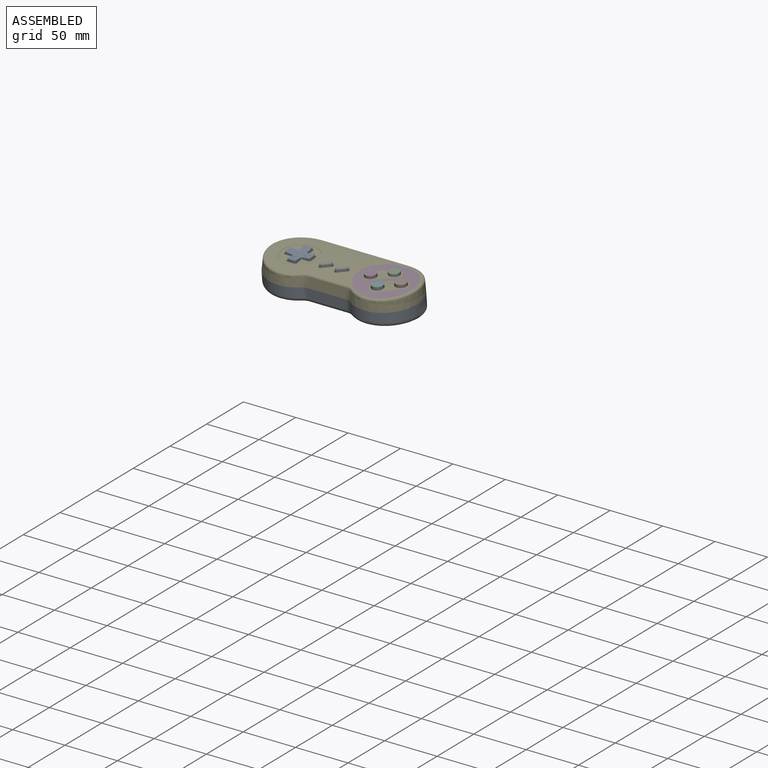
[diagram: assembled view]
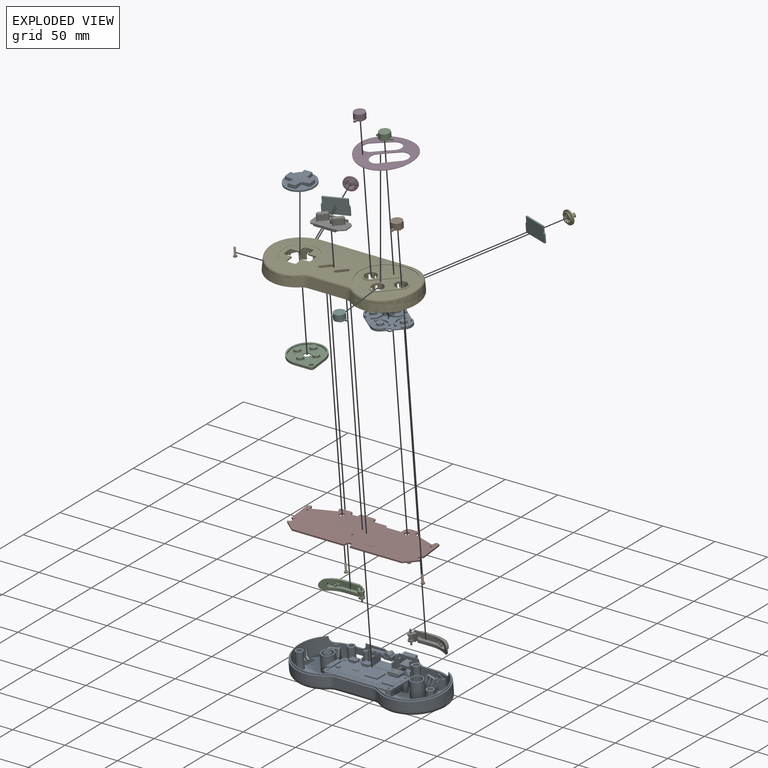
[diagram: exploded view]
GUIDED TOUR — MATED ASSEMBLY WITH SUBASSEMBLIES (Onshape document d4e5170b967958ae4bec7558, AutoMate assembly d4e5170b967958ae4bec7558_bfb75bdfd02195d627e89820_836d522591a3308e4b1309a6_default)

This assembly has 30 component occurrences arranged in 22 top-level units: 21 individual components plus 1 subassembly (S0). The tour has two levels: first the top level, where each subassembly is treated as one rigid unit; then each subassembly is toured internally in its own section (nesting deeper than one subassembly level is flattened into its subassembly's section).

Components are labeled P0..P29 across the whole record; subassembly units are labeled S0..S0. A mate is a constraint between two units; its type names the relative motion it leaves free:
  CYLINDRICAL — leaves both rotation about and translation along the listed axis free,
  FASTENED — locks the two components together rigidly (no relative motion),
  PARALLEL — keeps the two listed directions parallel,
  PLANAR — leaves sliding in the plane through the listed point (normal = the listed direction) and rotation about that normal free,
  SLIDER — leaves translation along the listed axis free.
Axis/direction vectors are unit vectors and 'through' points are millimeter coordinates, both in the assembly's world frame.

TOP-LEVEL MATES (between units; each subassembly's internal mates are listed in its own section)
  1. CYLINDRICAL "Cylindrical 7": P17 <-> P21, axis (0.000, 0.104, -0.995) through (1.51, -26.96, 27.78) mm
  2. CYLINDRICAL "Cylindrical 6": P24 <-> P17, axis (0.000, -0.104, 0.995) through (-101.99, -19.09, 29.61) mm
  3. CYLINDRICAL "Cylindrical 4": P13 <-> P17, axis (0.000, -0.104, 0.995) through (-101.99, -19.51, 33.59) mm
  4. FASTENED "Fastened 2": P12 <-> S0, direction (0.000, -0.104, 0.995) through (1.51, -26.23, 21.82) mm
  5. SLIDER "Slider 3": P10 <-> P17, axis (0.000, 0.104, -0.995) through (-77.17, -25.52, 33.18) mm
  6. PARALLEL "Parallel 2": P7 <-> P17, direction (0.000, 0.993, 0.122) through (-13.67, -29.84, 31.13) mm
  7. CYLINDRICAL "Cylindrical 10": P20 <-> P17, axis (0.000, 0.104, -0.995) through (-38.49, 6.01, 29.73) mm
  8. SLIDER "Slider 1": P23 <-> P17, axis (0.000, 0.104, -0.995) through (-5.49, -19.67, 34.91) mm
  9. PLANAR "Planar 2": P29 <-> P21, direction (0.309, -0.946, -0.099) through (-118.75, -5.45, 28.52) mm
  10. FASTENED "Fastened 3": P1 <-> S0, direction (0.000, -0.104, 0.995) through (-29.99, -0.37, 24.53) mm
  11. CYLINDRICAL "Cylindrical 2": P2 <-> P17, axis (0.000, 0.104, -0.995) through (-19.99, -8.21, 35.94) mm
  12. PLANAR "Planar 1": P19 <-> P21, direction (-0.309, -0.946, -0.099) through (-24.15, 1.31, 29.23) mm
  13. CYLINDRICAL "Cylindrical 9": P25 <-> P17, axis (0.309, -0.947, -0.090) through (-109.97, 4.37, 25.54) mm
  14. SLIDER "Slider 2": P16 <-> P17, axis (0.621, -0.779, -0.082) through (-31.58, -8.48, 35.96) mm
  15. PARALLEL "Parallel 1": P23 <-> P17, direction (-1.000, -0.002, 0.017) through (-6.48, -13.12, 33.09) mm
  16. CYLINDRICAL "Cylindrical 1": P7 <-> P17, axis (0.000, 0.104, -0.995) through (-19.99, -31.08, 33.51) mm
  17. FASTENED "Fastened 4": P26 <-> S0, direction (0.000, -0.104, 0.995) through (-91.99, -0.37, 24.53) mm
  18. CYLINDRICAL "Cylindrical 3": P4 <-> P17, axis (0.000, 0.104, -0.995) through (-34.49, -19.66, 34.82) mm
  19. CYLINDRICAL "Cylindrical 5": P22 <-> P17, axis (0.000, -0.104, 0.995) through (-5.49, -19.11, 29.61) mm
  20. PARALLEL "Parallel 4": P4 <-> P17, direction (-1.000, -0.002, 0.017) through (-35.48, -25.69, 31.76) mm
  21. FASTENED "Fastened 5": P14 <-> S0, direction (0.000, -0.104, 0.995) through (-123.49, -26.23, 21.82) mm
  22. FASTENED "Fastened 1": S0 <-> P17, direction (0.000, -0.104, 0.995) through (-79.07, -42.13, 21.16) mm
  23. CYLINDRICAL "Cylindrical 8": P6 <-> P17, axis (-0.309, -0.947, -0.090) through (-12.01, 4.37, 25.54) mm
  24. CYLINDRICAL "Cylindrical 11": P15 <-> P17, axis (0.000, -0.104, 0.995) through (-83.49, 6.01, 29.73) mm
  25. PARALLEL "Parallel 3": P2 <-> P17, direction (0.000, -0.996, -0.087) through (-26.31, -8.95, 33.43) mm

TOP-LEVEL ASSEMBLY ORDER
  1. P17 — the base component [order heuristic]
  2. P10 — core [order heuristic]
  3. P6 — core [order heuristic]
  4. P21 — core [order heuristic]
  5. P15 — core [order heuristic]
  6. P20 — core [order heuristic]
  7. P23 — core [order heuristic]
  8. P22 — core [order heuristic]
  9. P4 [order verified]
  10. P24 — core [order heuristic]
  11. P25 — core [order heuristic]
  12. P1 — core [order heuristic]
  13. P12 — core [order heuristic]
  14. P26 — core [order heuristic]
  15. P29 — core [order heuristic]
  16. P14 [order verified]
  17. P13 [order verified]
  18. P7 [order verified]
  19. P2 [order verified]
  20. P19 [order verified]
  21. P16 [order verified]
  22. S0 — core [order heuristic]
(P2, P7, P13, P14 verified with a relaxed clearance tolerance: the source model stores slight part interference there.)
Order-tag legend:
  [order verified] — this step's position reverses a verified removal order: the component was checked to insert without passing through the ones already placed.
  [order heuristic] — the first 15 components form the assembly's core: parts whose collision-free extraction could not be verified, listed in mate-graph order.

Of the 30 component occurrences, 2 carry the full construction recipe — the FeatureScript program that regenerates the part's solid from scratch; the rest are supplied as boundary geometry only. Each toured unit is shown spotlighted twice — assembled, then exploded with a leader line back to its socket (green = recipe-attached component, orange = geometry-only, blue = subassembly unit; the rest desaturated gray).
NOTE — this tour is split across 3 documents so each fits a 32k-token context. This is document 1: the component sections continue in the remaining 2 documents, each repeating the header above.
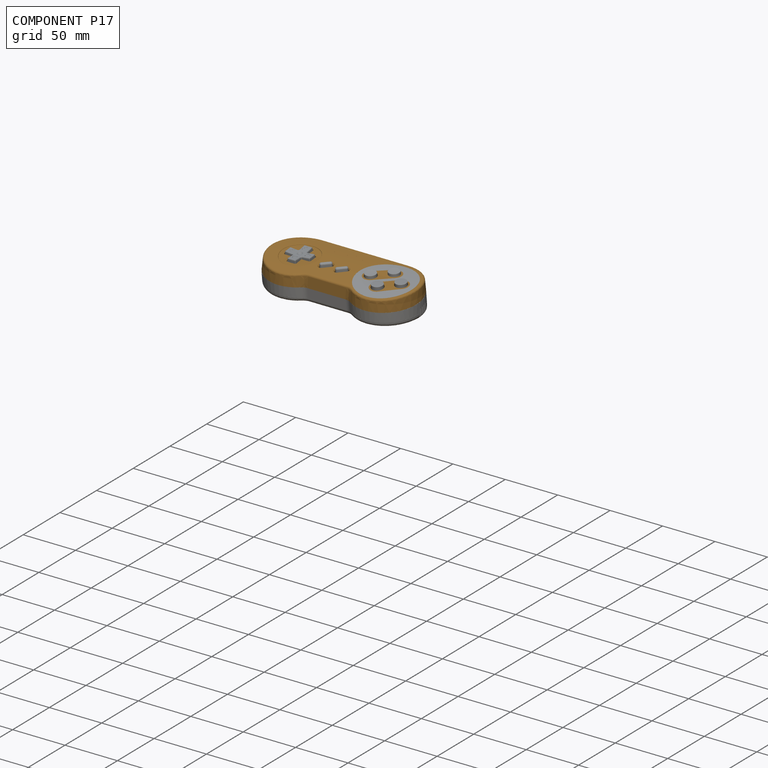
[diagram: component P17 — assembled]
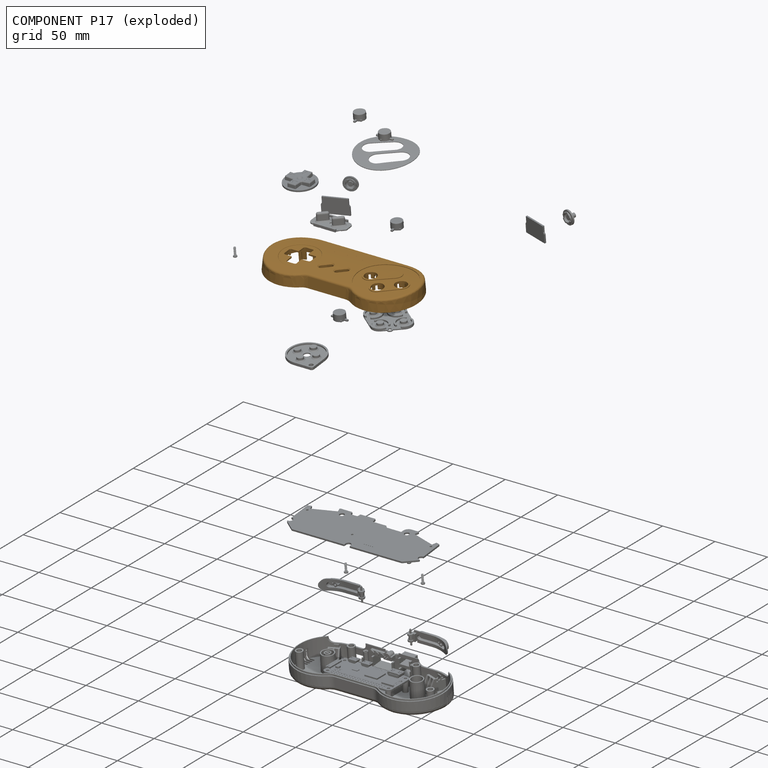
[diagram: component P17 — exploded]
COMPONENT P17 — geometry summary (no construction recipe available for this part):
  bounding box: 144.9 x 72.9 x 20.8 mm
  B-rep topology: 1 solid, 1193 faces, 6526 edges
  volume: 19819 mm^3 (9% of its bounding box)
Held by: CYLINDRICAL mate "Cylindrical 7" to P21; CYLINDRICAL mate "Cylindrical 6" to P24; CYLINDRICAL mate "Cylindrical 4" to P13; SLIDER mate "Slider 3" to P10; PARALLEL mate "Parallel 2" to P7; CYLINDRICAL mate "Cylindrical 10" to P20; SLIDER mate "Slider 1" to P23; CYLINDRICAL mate "Cylindrical 2" to P2; CYLINDRICAL mate "Cylindrical 9" to P25; SLIDER mate "Slider 2" to P16; PARALLEL mate "Parallel 1" to P23; CYLINDRICAL mate "Cylindrical 1" to P7; CYLINDRICAL mate "Cylindrical 3" to P4; CYLINDRICAL mate "Cylindrical 5" to P22; PARALLEL mate "Parallel 4" to P4; FASTENED mate "Fastened 1" to P0; CYLINDRICAL mate "Cylindrical 8" to P6; CYLINDRICAL mate "Cylindrical 11" to P15; PARALLEL mate "Parallel 3" to P2.
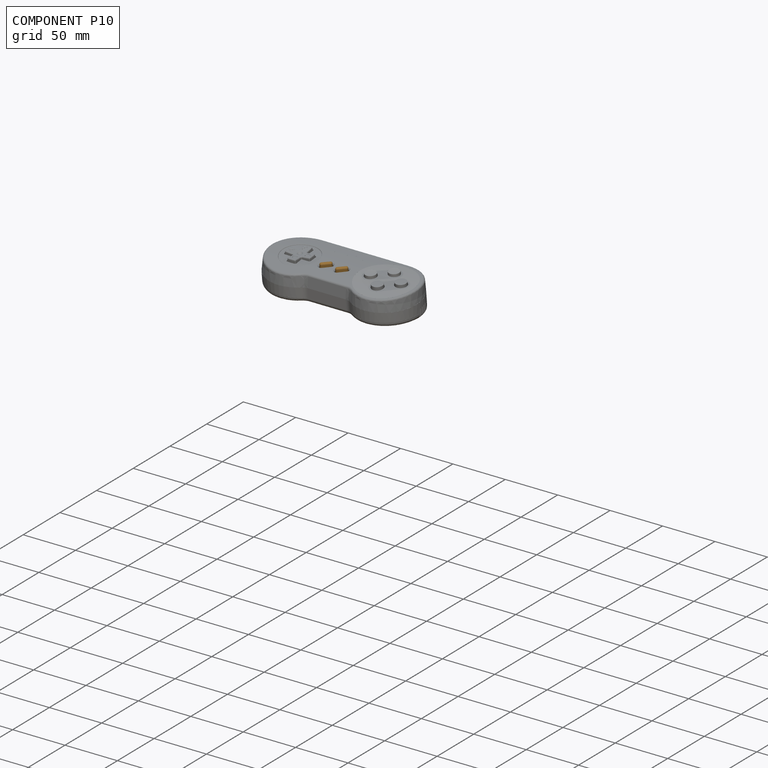
[diagram: component P10 — assembled]
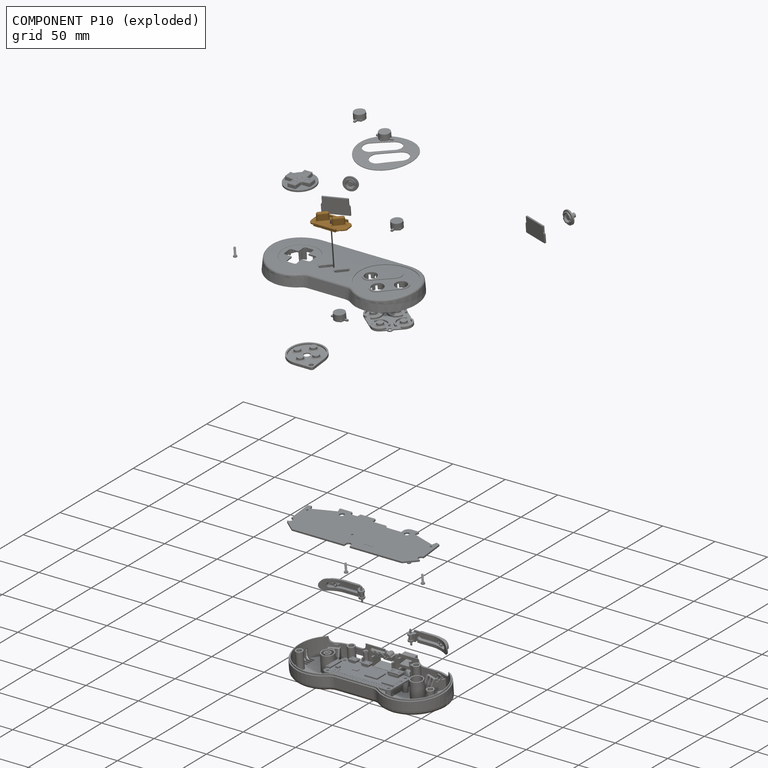
[diagram: component P10 — exploded]
COMPONENT P10 — geometry summary (no construction recipe available for this part):
  bounding box: 33.0 x 18.0 x 9.0 mm
  B-rep topology: 1 solid, 91 faces, 454 edges
  volume: 993 mm^3 (19% of its bounding box)
  symmetry: 2-fold rotationally symmetric about the z axis
Held by: SLIDER mate "Slider 3" to P17.
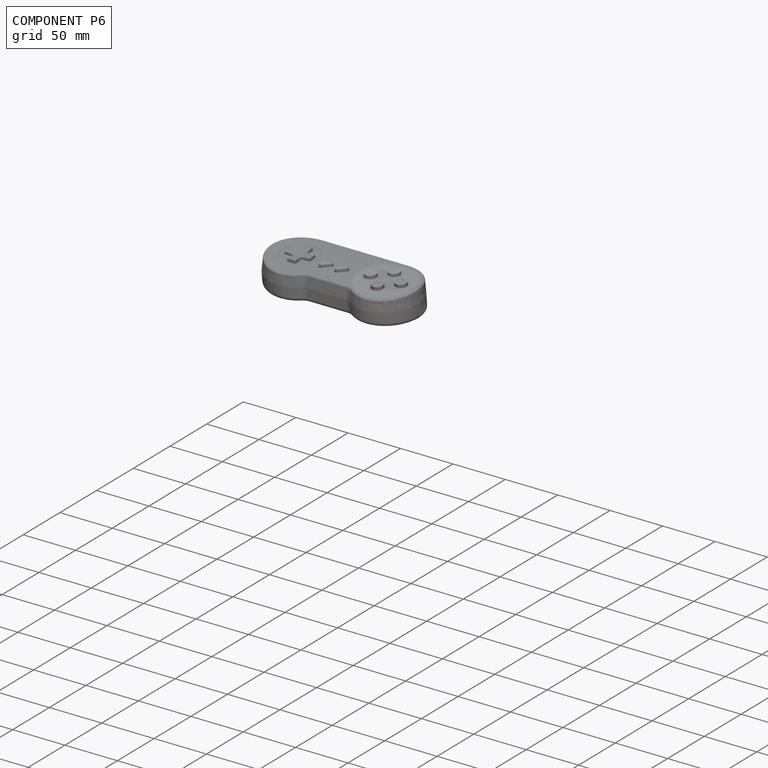
[diagram: component P6 — assembled]
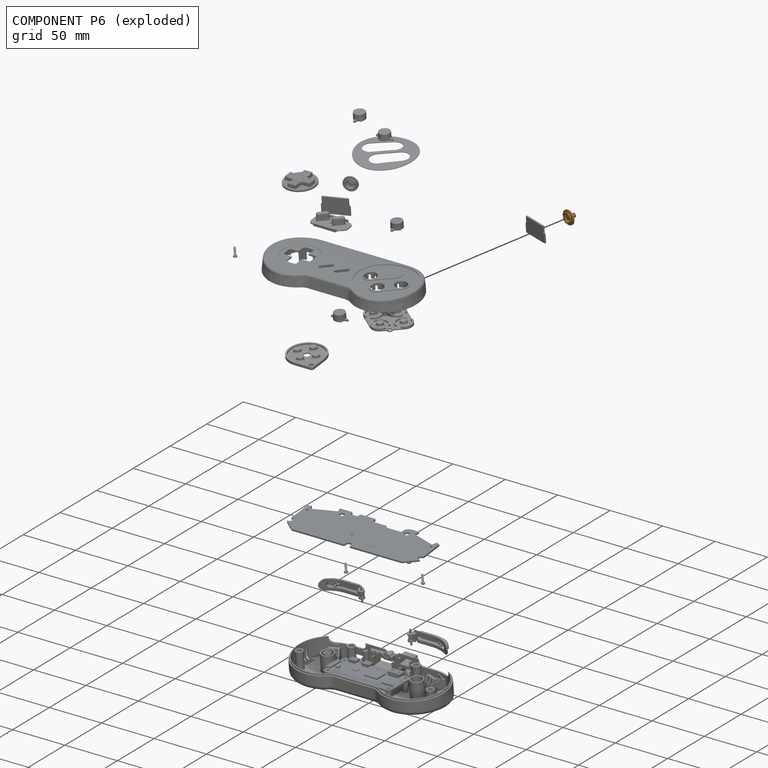
[diagram: component P6 — exploded]
COMPONENT P6 — geometry summary (no construction recipe available for this part):
  bounding box: 13.0 x 13.0 x 8.0 mm
  B-rep topology: 1 solid, 28 faces, 134 edges
  volume: 292 mm^3 (22% of its bounding box)
  symmetry: 4-fold rotationally symmetric about the z axis; mirror-symmetric across its x mid-plane, y mid-plane
Held by: CYLINDRICAL mate "Cylindrical 8" to P17.
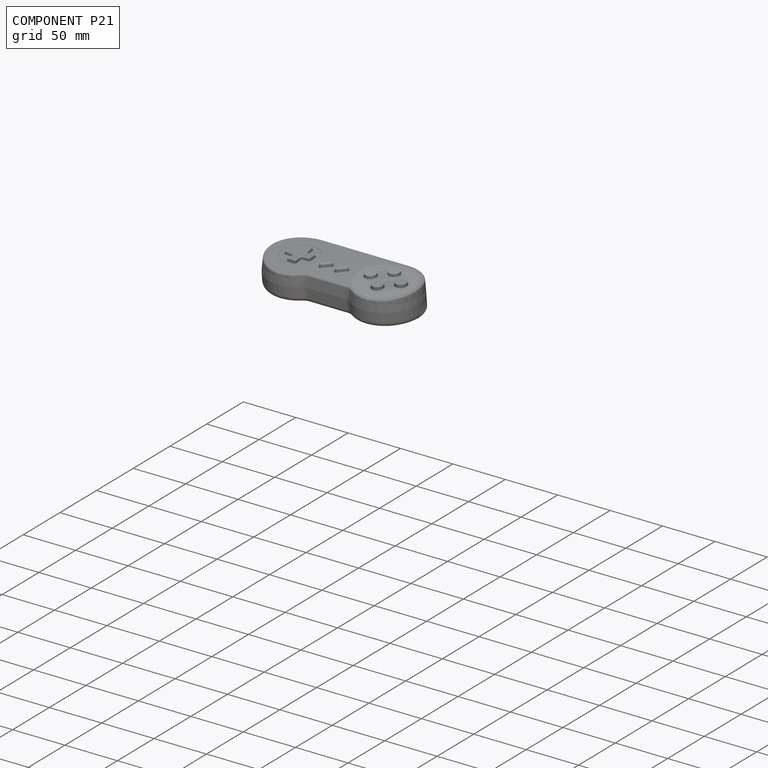
[diagram: component P21 — assembled]
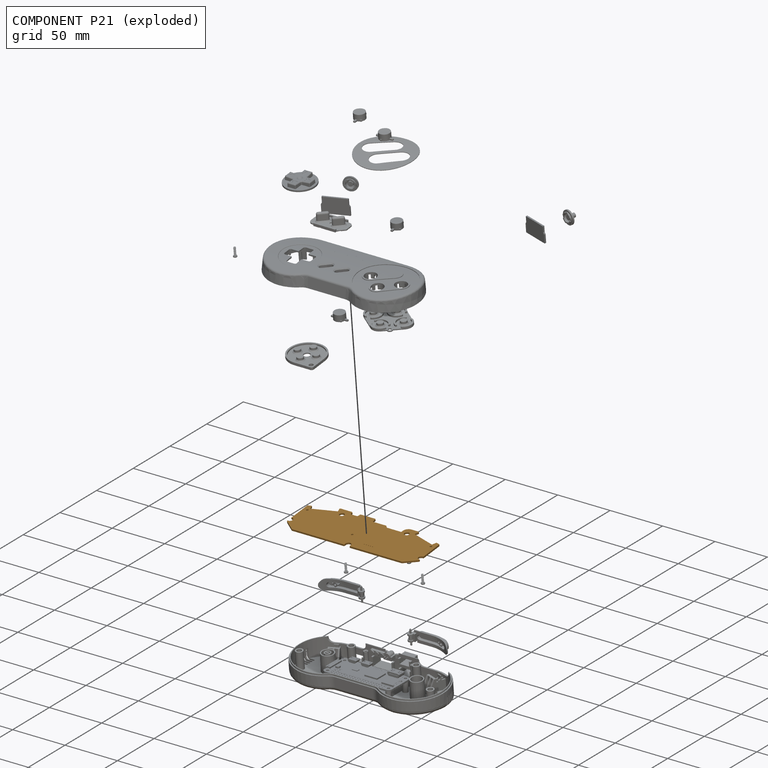
[diagram: component P21 — exploded]
COMPONENT P21 — geometry summary (no construction recipe available for this part):
  bounding box: 126.0 x 45.0 x 1.5 mm
  B-rep topology: 1 solid, 71 faces, 424 edges
  volume: 7302 mm^3 (86% of its bounding box)
  symmetry: mirror-symmetric across its z mid-plane
Held by: CYLINDRICAL mate "Cylindrical 7" to P17; PLANAR mate "Planar 2" to P29; PLANAR mate "Planar 1" to P19.
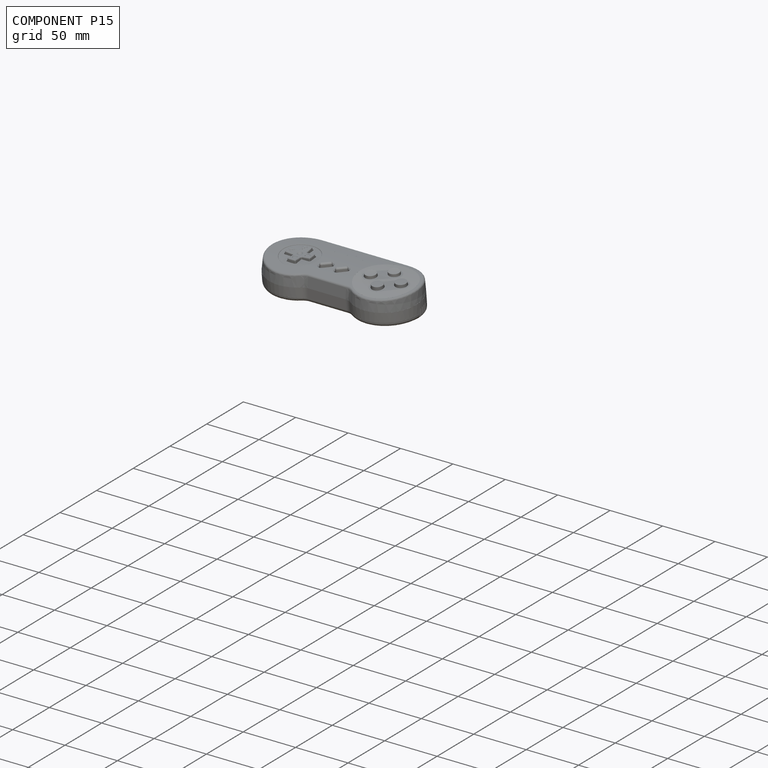
[diagram: component P15 — assembled]
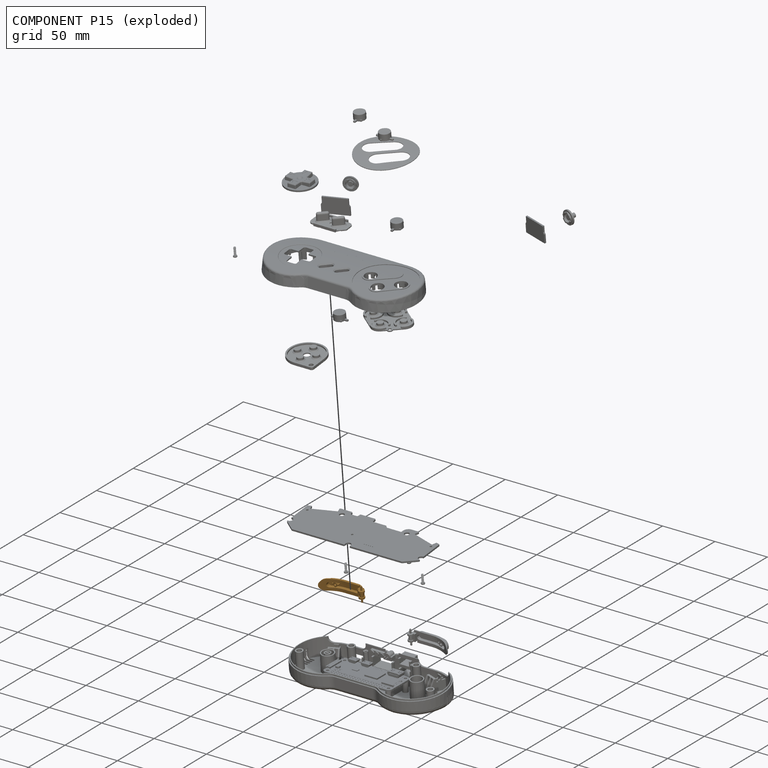
[diagram: component P15 — exploded]
COMPONENT P15 — geometry summary (no construction recipe available for this part):
  bounding box: 40.7 x 15.0 x 12.1 mm
  B-rep topology: 1 solid, 69 faces, 368 edges
  volume: 991 mm^3 (13% of its bounding box)
Held by: CYLINDRICAL mate "Cylindrical 11" to P17.
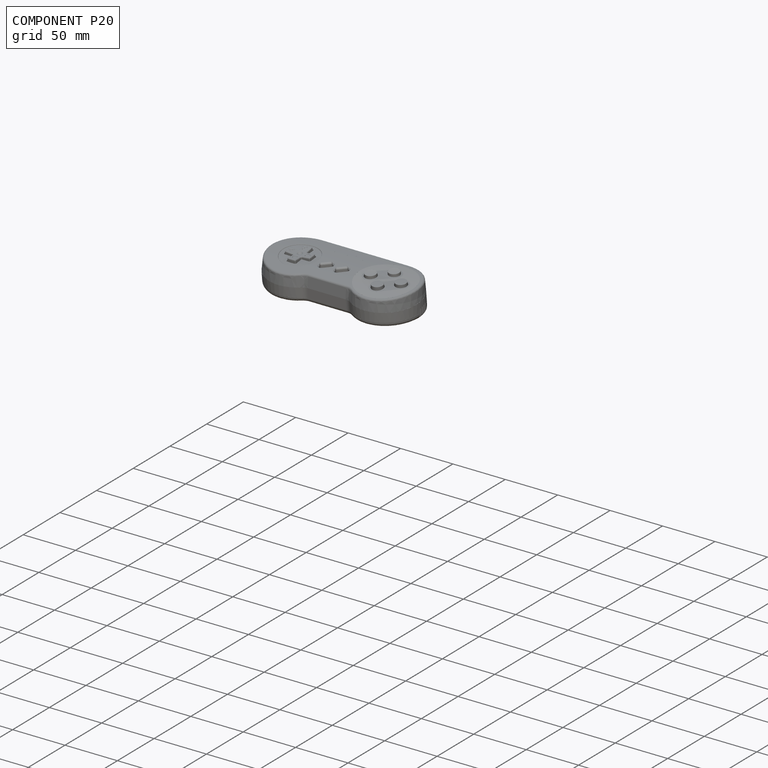
[diagram: component P20 — assembled]
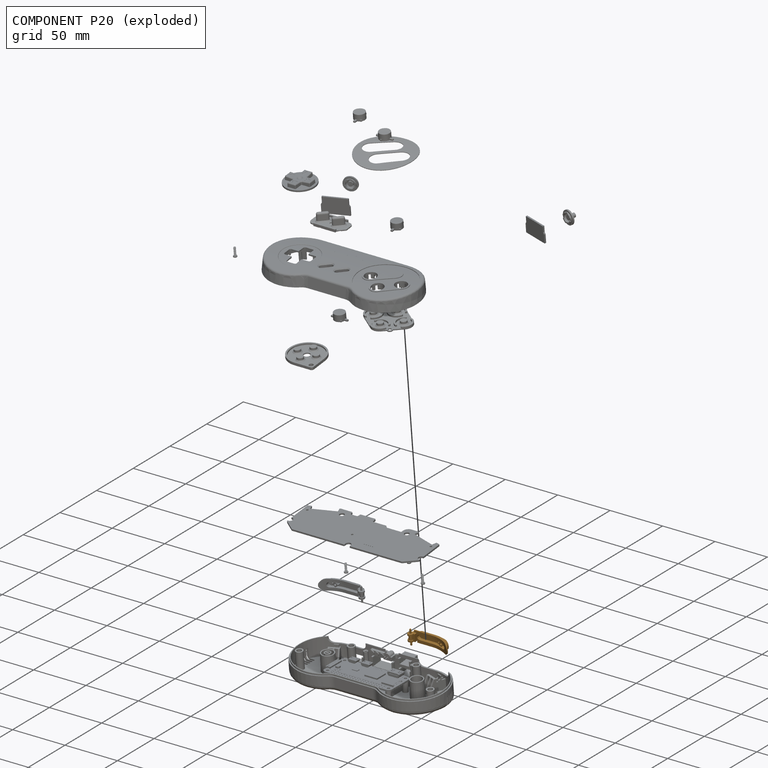
[diagram: component P20 — exploded]
COMPONENT P20 — geometry summary (no construction recipe available for this part):
  bounding box: 40.7 x 15.0 x 12.1 mm
  B-rep topology: 1 solid, 83 faces, 452 edges
  volume: 991 mm^3 (13% of its bounding box)
Held by: CYLINDRICAL mate "Cylindrical 10" to P17.
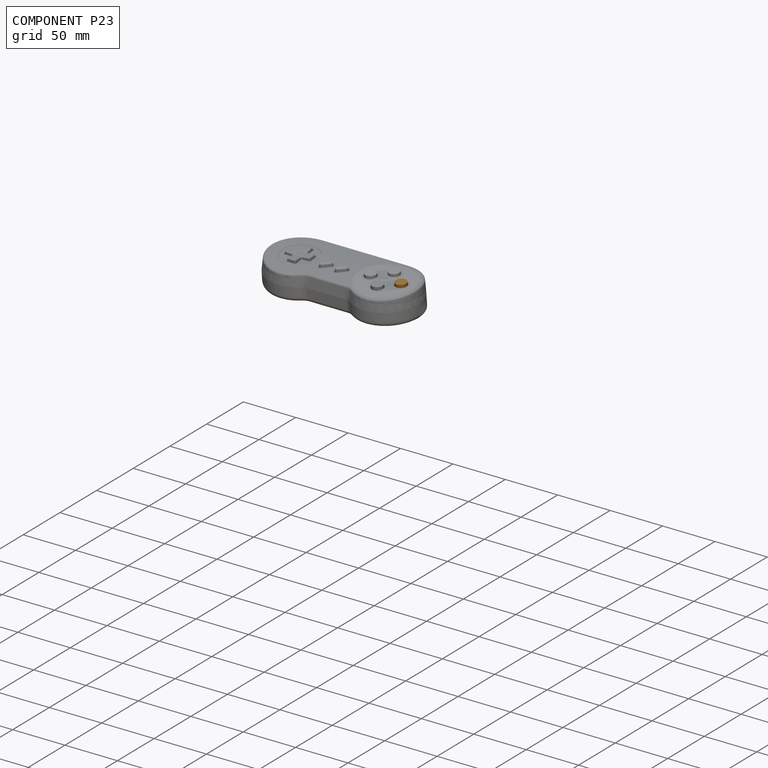
[diagram: component P23 — assembled]
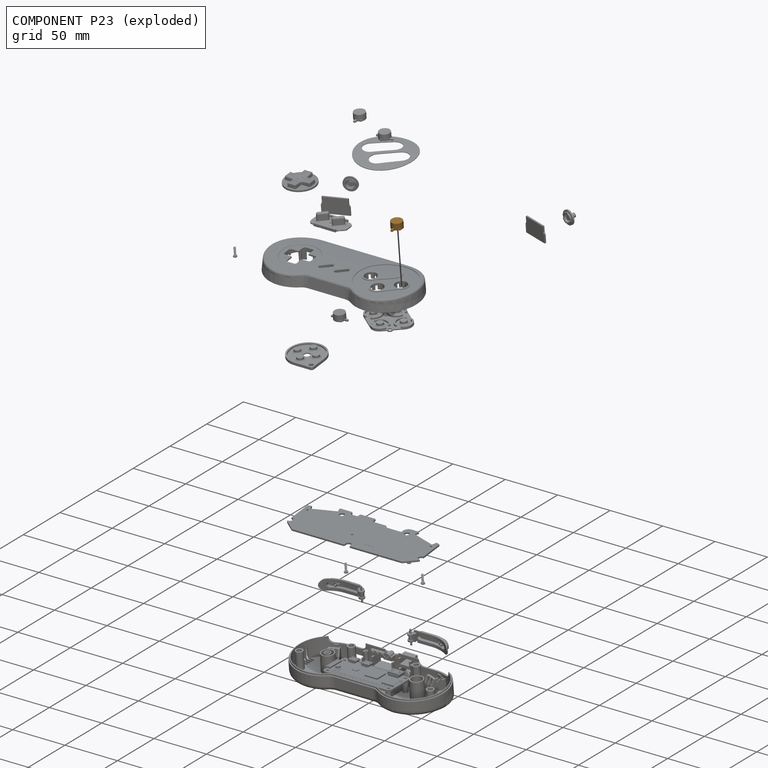
[diagram: component P23 — exploded]
COMPONENT P23 — geometry summary (no construction recipe available for this part):
  bounding box: 16.0 x 10.5 x 6.3 mm
  B-rep topology: 1 solid, 58 faces, 295 edges
  volume: 435 mm^3 (41% of its bounding box)
Held by: SLIDER mate "Slider 1" to P17; PARALLEL mate "Parallel 1" to P17.
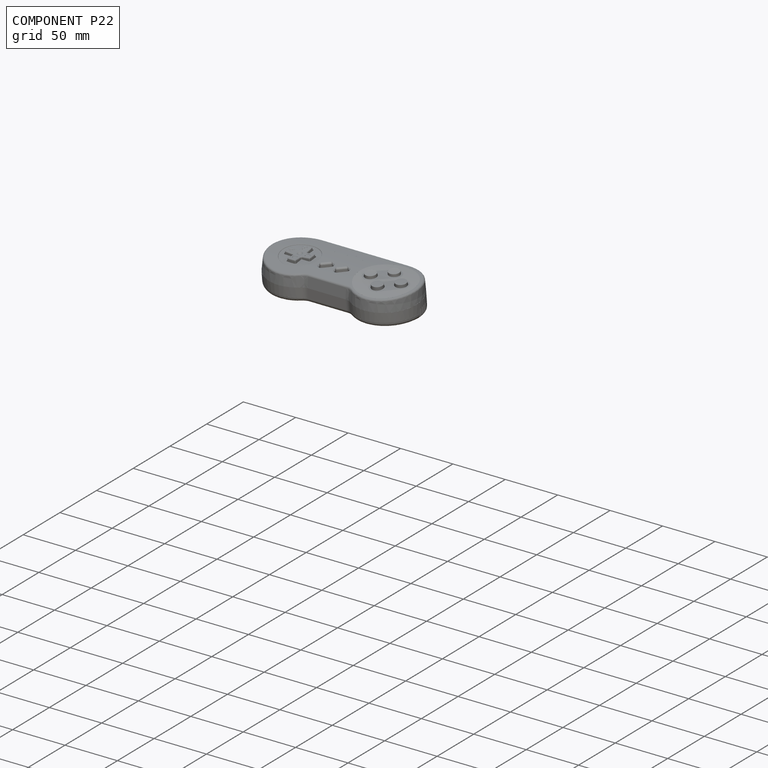
[diagram: component P22 — assembled]
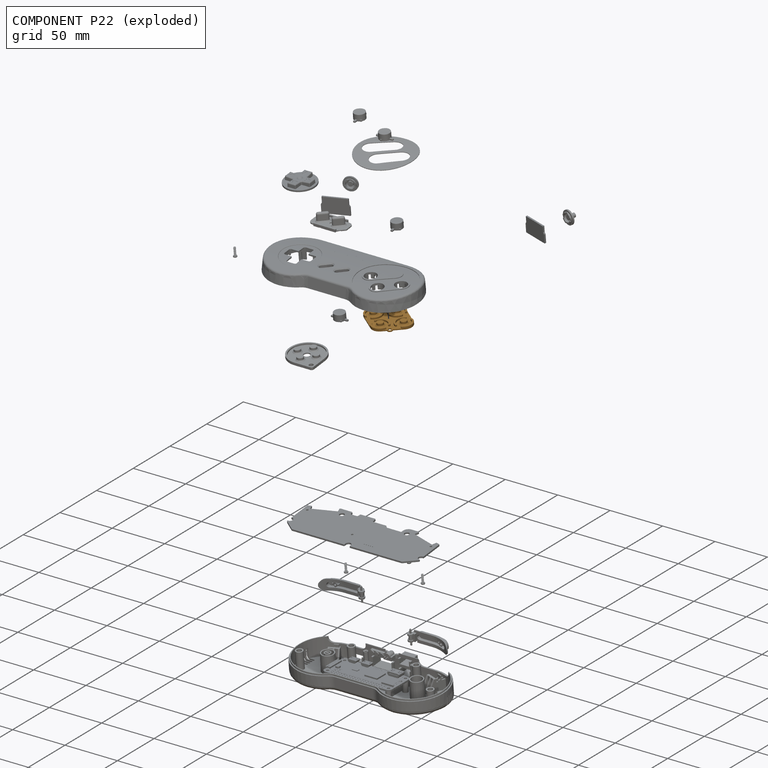
[diagram: component P22 — exploded]
COMPONENT P22 — geometry summary (no construction recipe available for this part):
  bounding box: 45.0 x 39.0 x 4.0 mm
  B-rep topology: 1 solid, 113 faces, 576 edges
  volume: 1605 mm^3 (23% of its bounding box)
  symmetry: 2-fold rotationally symmetric about the z axis
Held by: CYLINDRICAL mate "Cylindrical 5" to P17.
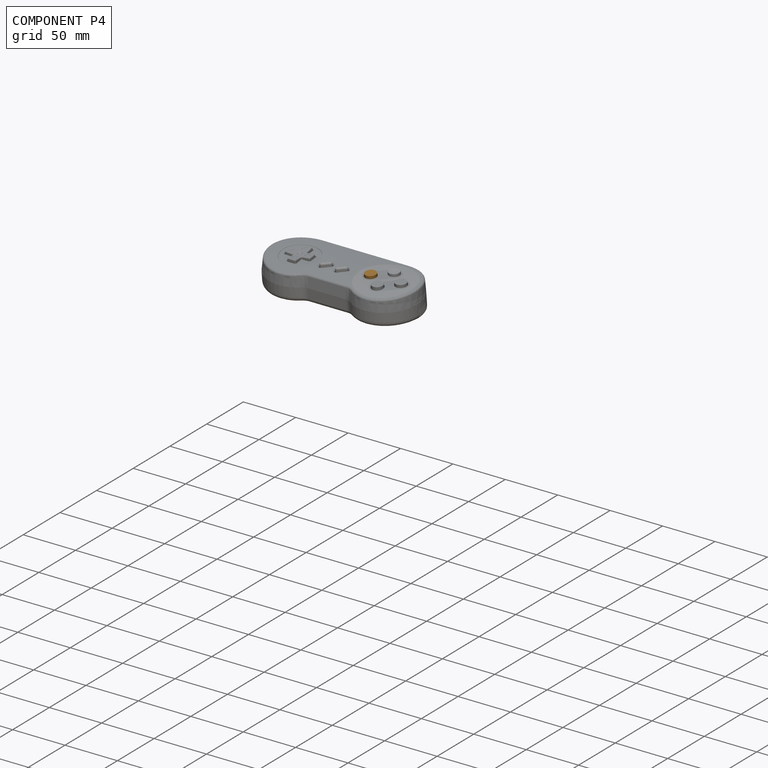
[diagram: component P4 — assembled]
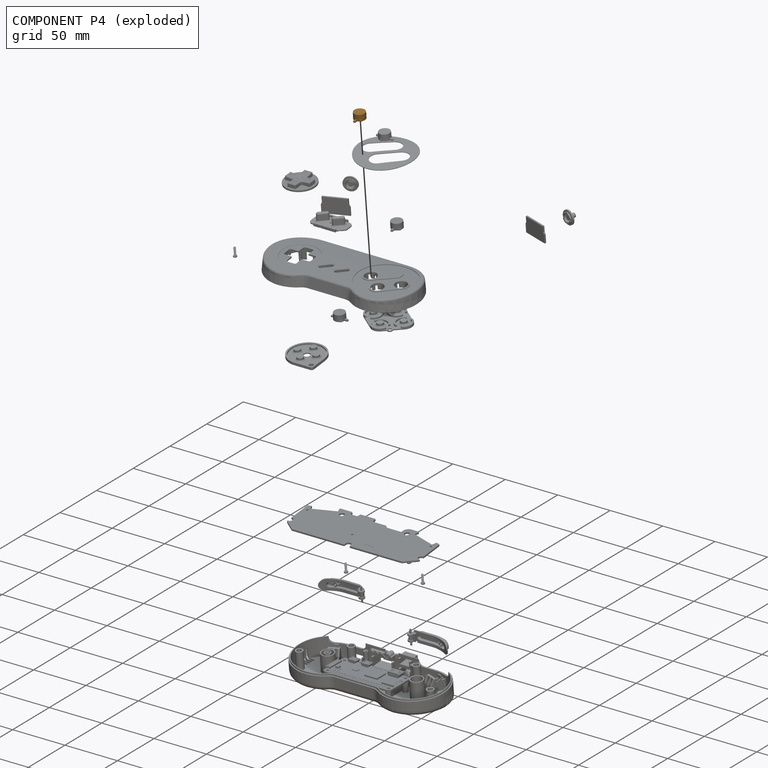
[diagram: component P4 — exploded]
COMPONENT P4 — geometry summary (no construction recipe available for this part):
  bounding box: 16.0 x 11.2 x 5.9 mm
  B-rep topology: 1 solid, 59 faces, 301 edges
  volume: 401 mm^3 (38% of its bounding box)
Held by: CYLINDRICAL mate "Cylindrical 3" to P17; PARALLEL mate "Parallel 4" to P17.
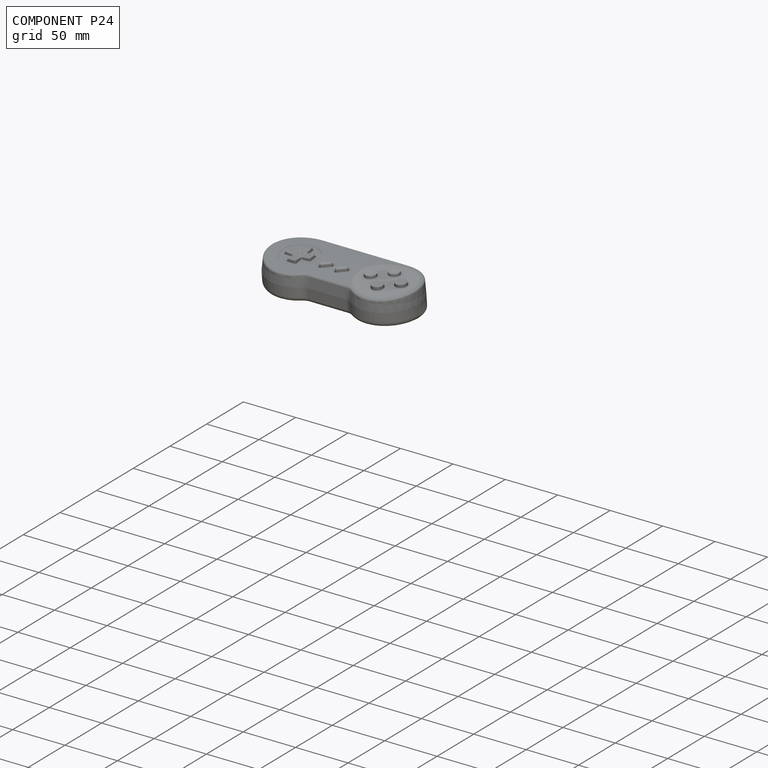
[diagram: component P24 — assembled]
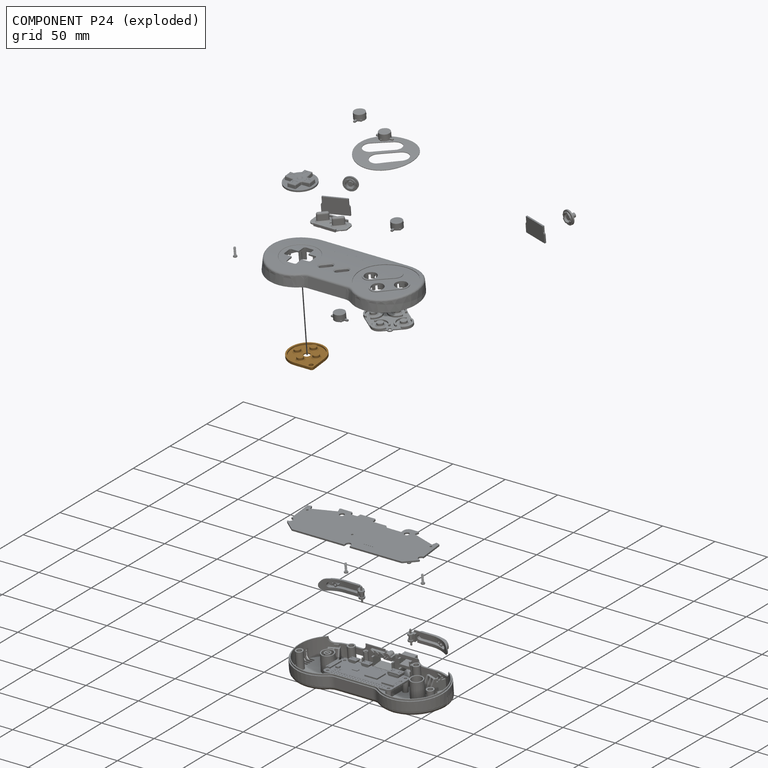
[diagram: component P24 — exploded]
COMPONENT P24 — geometry summary (no construction recipe available for this part):
  bounding box: 34.0 x 34.0 x 4.0 mm
  B-rep topology: 1 solid, 51 faces, 244 edges
  volume: 1337 mm^3 (29% of its bounding box)
Held by: CYLINDRICAL mate "Cylindrical 6" to P17.
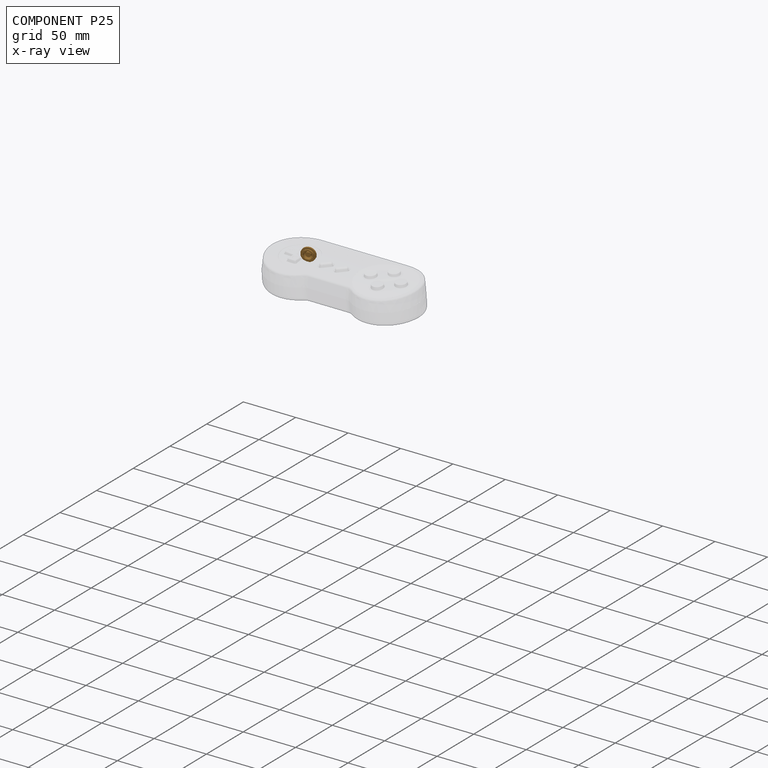
[diagram: component P25 — x-ray view]
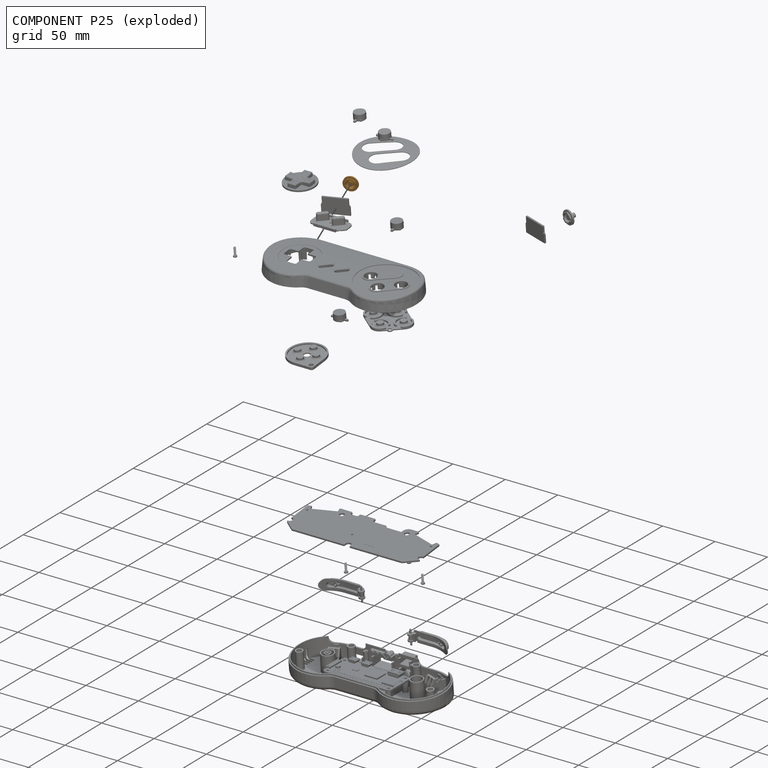
[diagram: component P25 — exploded]
COMPONENT P25 — geometry summary (no construction recipe available for this part):
  bounding box: 13.0 x 13.0 x 8.0 mm
  B-rep topology: 1 solid, 28 faces, 134 edges
  volume: 292 mm^3 (22% of its bounding box)
  symmetry: 4-fold rotationally symmetric about the z axis; mirror-symmetric across its x mid-plane, y mid-plane
Held by: CYLINDRICAL mate "Cylindrical 9" to P17.
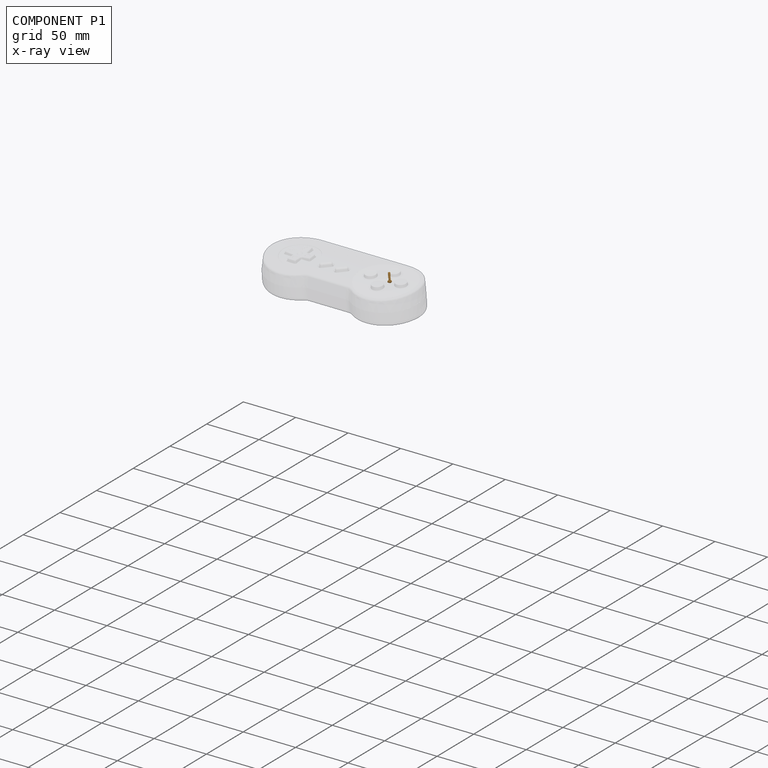
[diagram: component P1 — x-ray view]
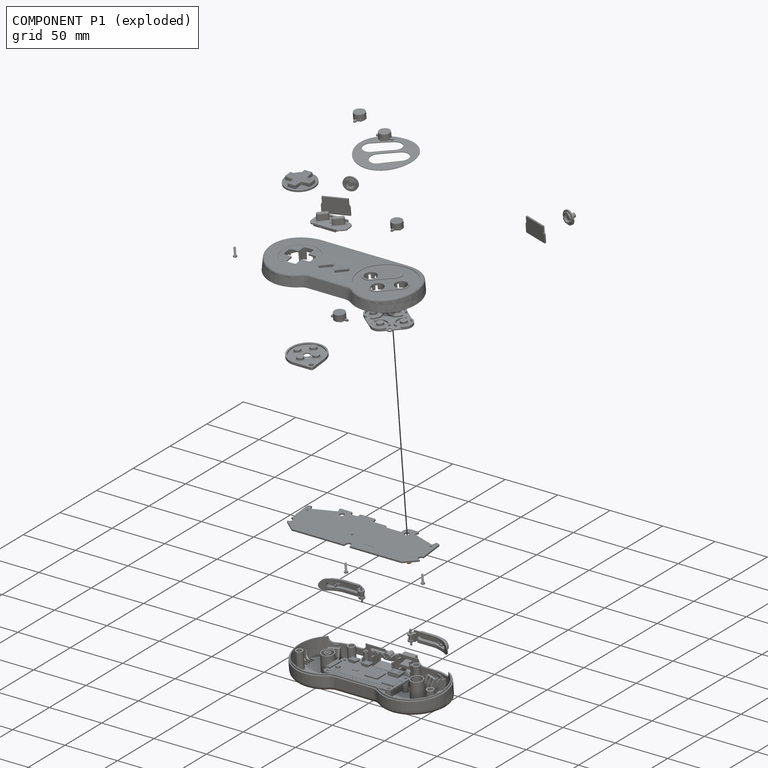
[diagram: component P1 — exploded]
COMPONENT P1 — geometry summary (no construction recipe available for this part):
  bounding box: 9.6 x 3.9 x 3.9 mm
  B-rep topology: 1 solid, 38 faces, 189 edges
  volume: 29 mm^3 (19% of its bounding box)
Held by: FASTENED mate "Fastened 3" to P0.
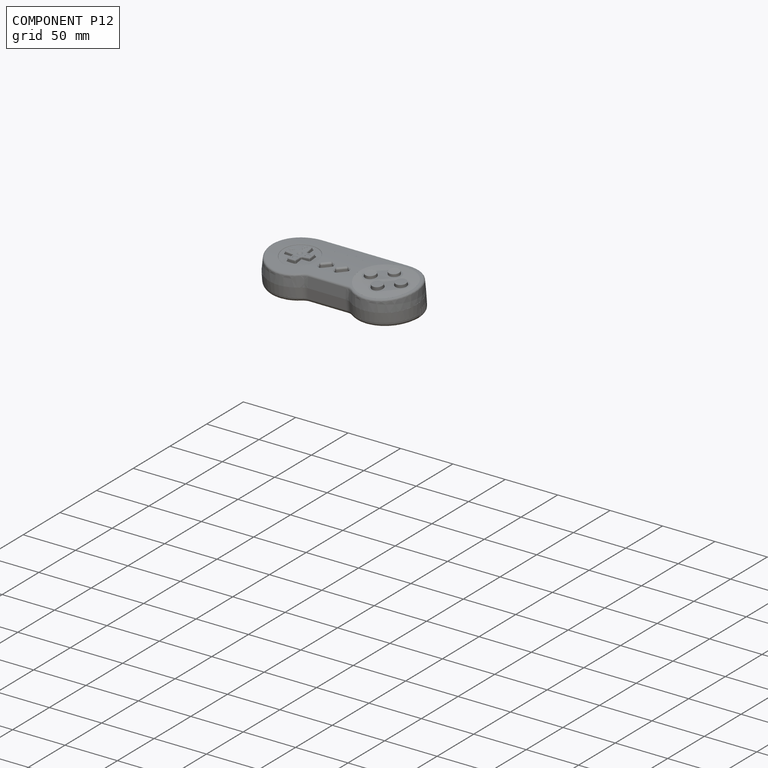
[diagram: component P12 — assembled]
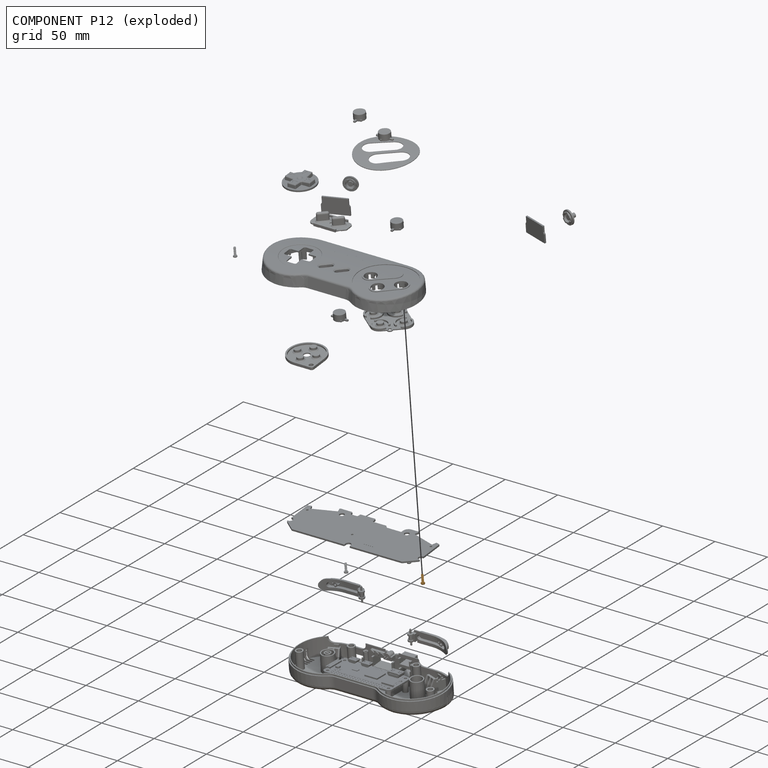
[diagram: component P12 — exploded]
COMPONENT P12 — geometry summary (no construction recipe available for this part):
  bounding box: 9.6 x 3.9 x 3.9 mm
  B-rep topology: 1 solid, 38 faces, 189 edges
  volume: 29 mm^3 (19% of its bounding box)
Held by: FASTENED mate "Fastened 2" to P0.
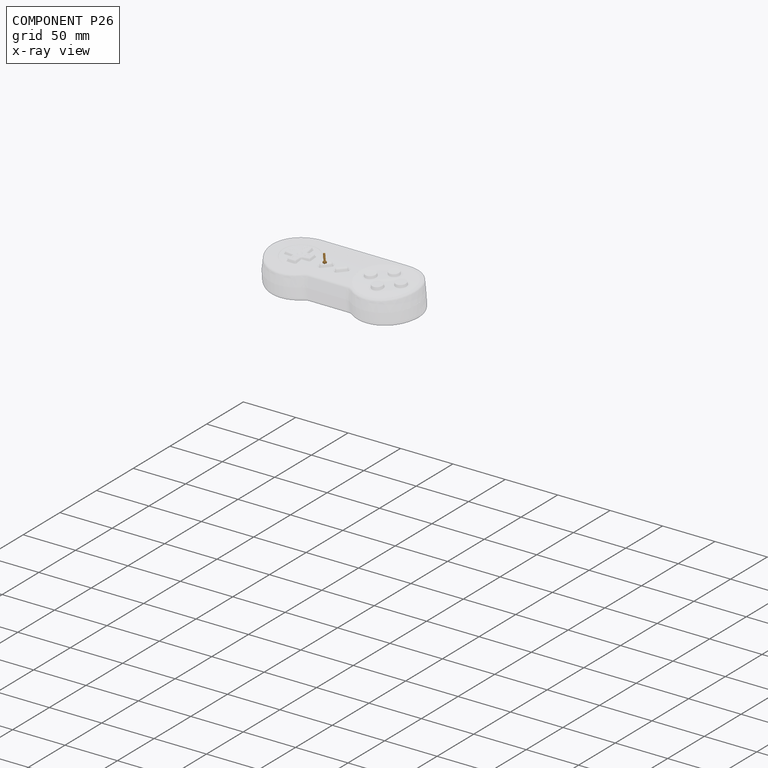
[diagram: component P26 — x-ray view]
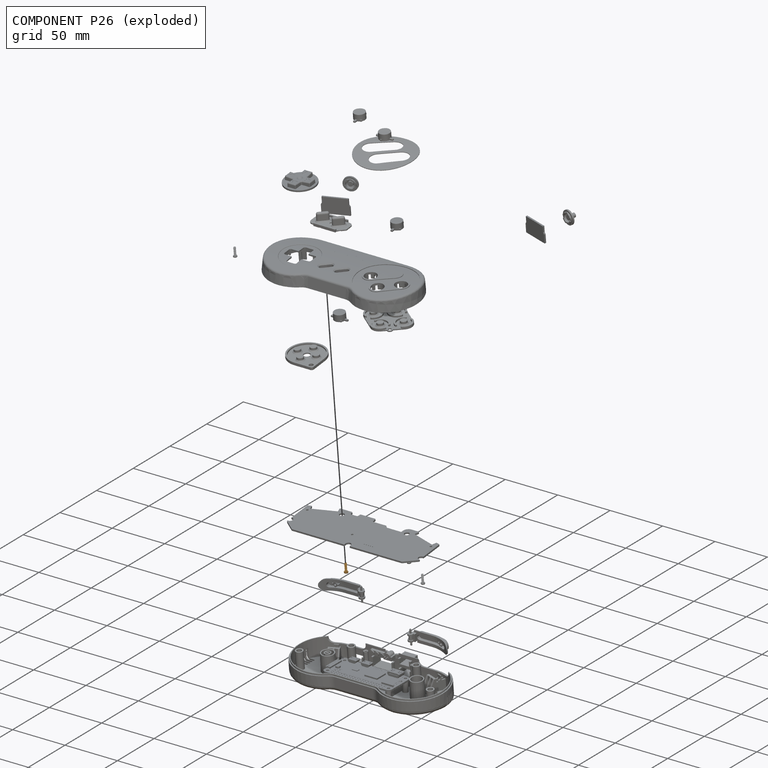
[diagram: component P26 — exploded]
COMPONENT P26 — geometry summary (no construction recipe available for this part):
  bounding box: 9.6 x 3.9 x 3.9 mm
  B-rep topology: 1 solid, 38 faces, 189 edges
  volume: 29 mm^3 (19% of its bounding box)
Held by: FASTENED mate "Fastened 4" to P0.
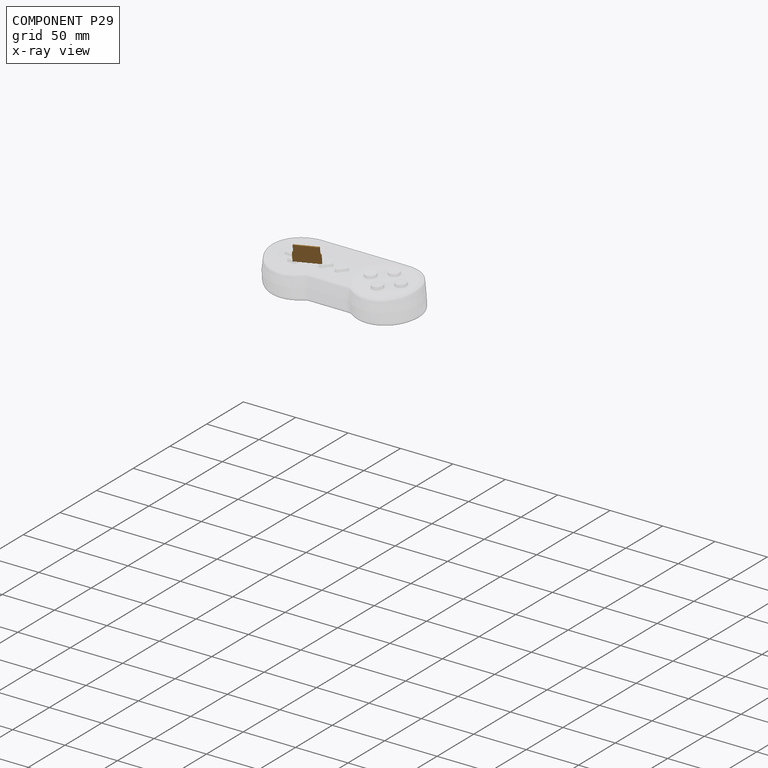
[diagram: component P29 — x-ray view]
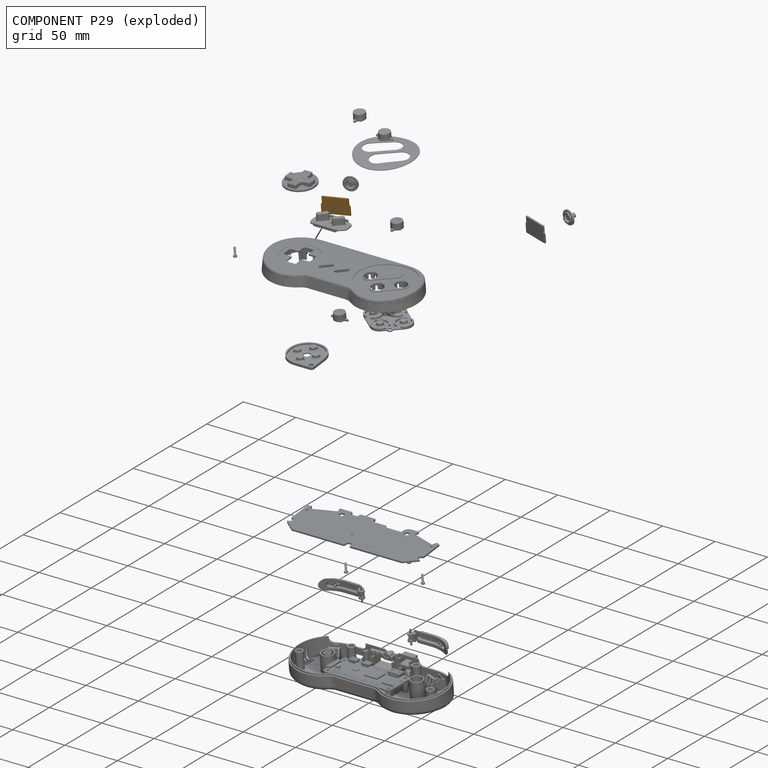
[diagram: component P29 — exploded]
COMPONENT P29 — geometry summary (no construction recipe available for this part):
  bounding box: 24.0 x 15.0 x 1.5 mm
  B-rep topology: 1 solid, 10 faces, 48 edges
  volume: 521 mm^3 (97% of its bounding box)
  symmetry: 2-fold rotationally symmetric about the y axis; mirror-symmetric across its x mid-plane, z mid-plane
Held by: PLANAR mate "Planar 2" to P21.
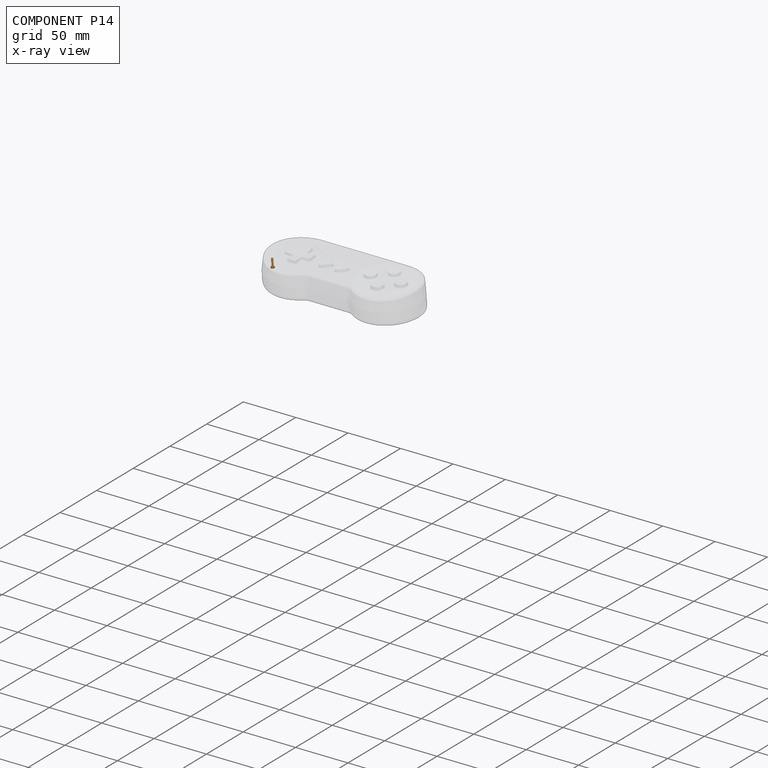
[diagram: component P14 — x-ray view]
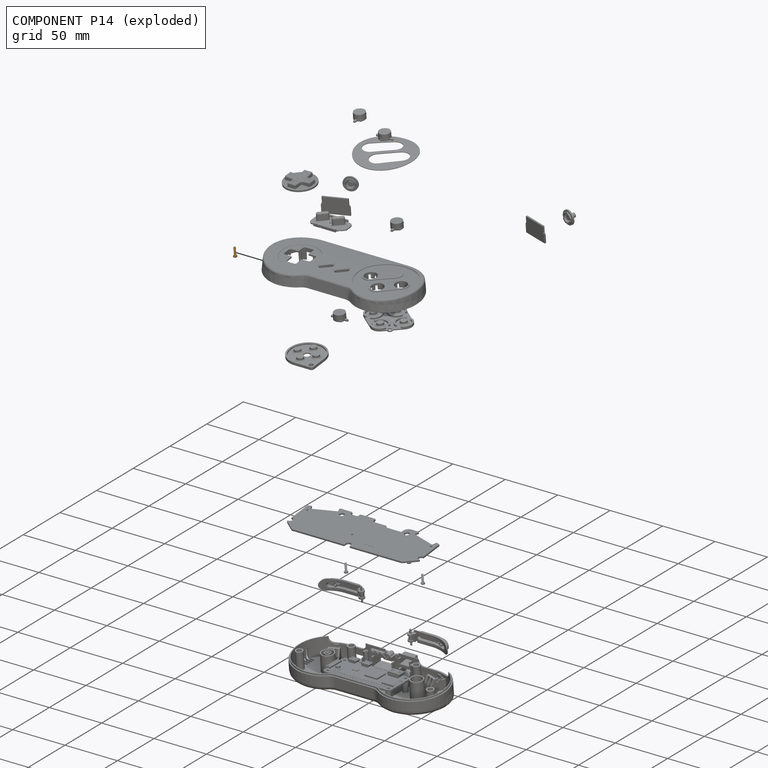
[diagram: component P14 — exploded]
COMPONENT P14 — geometry summary (no construction recipe available for this part):
  bounding box: 9.6 x 3.9 x 3.9 mm
  B-rep topology: 1 solid, 38 faces, 189 edges
  volume: 29 mm^3 (19% of its bounding box)
Held by: FASTENED mate "Fastened 5" to P0.
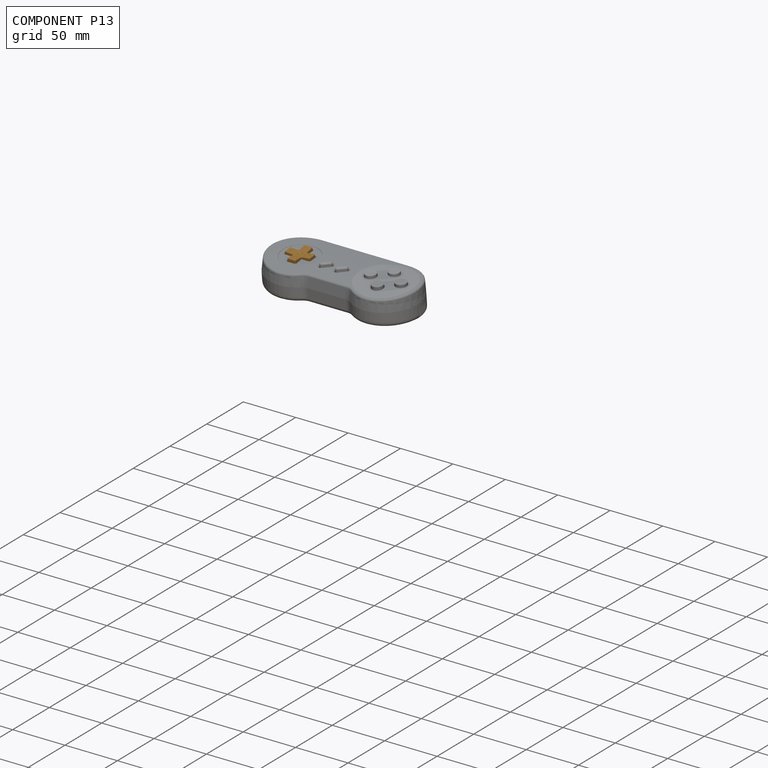
[diagram: component P13 — assembled]
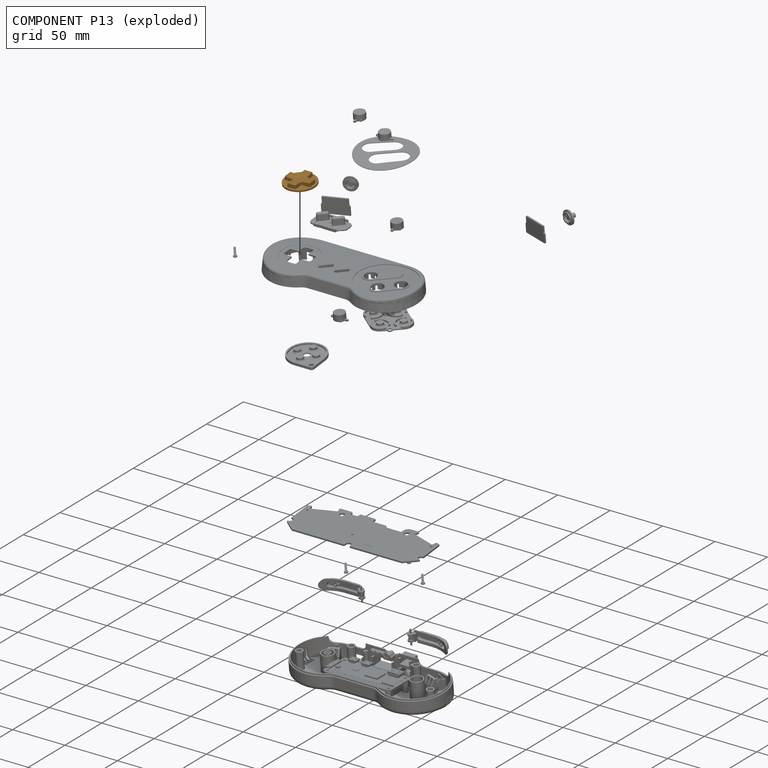
[diagram: component P13 — exploded]
COMPONENT P13 — geometry summary (no construction recipe available for this part):
  bounding box: 29.4 x 29.4 x 8.9 mm
  B-rep topology: 1 solid, 142 faces, 704 edges
  volume: 1962 mm^3 (26% of its bounding box)
  symmetry: 4-fold rotationally symmetric about the z axis; mirror-symmetric across its x mid-plane, y mid-plane
Held by: CYLINDRICAL mate "Cylindrical 4" to P17.
